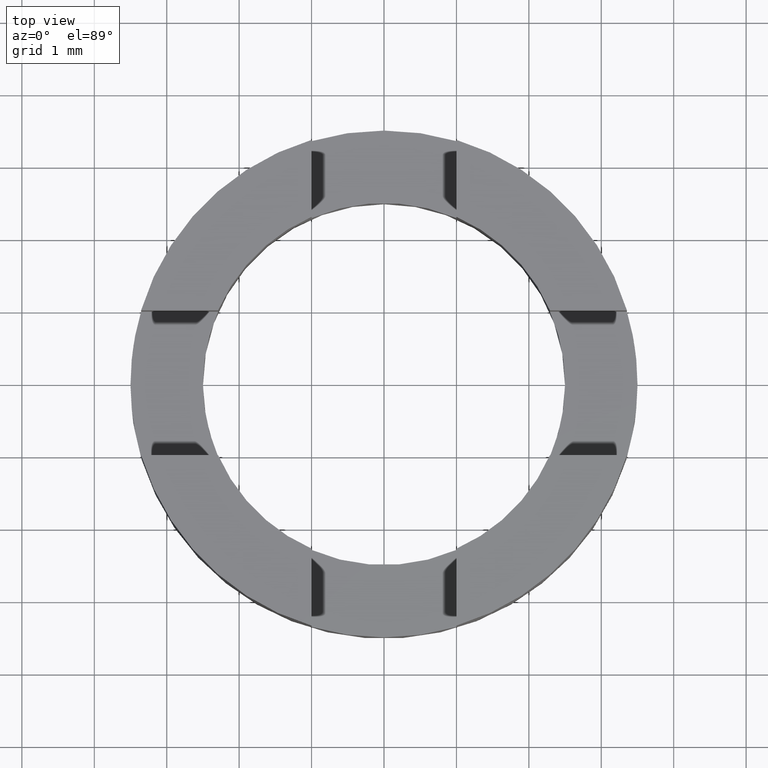
[diagram: clean part render]
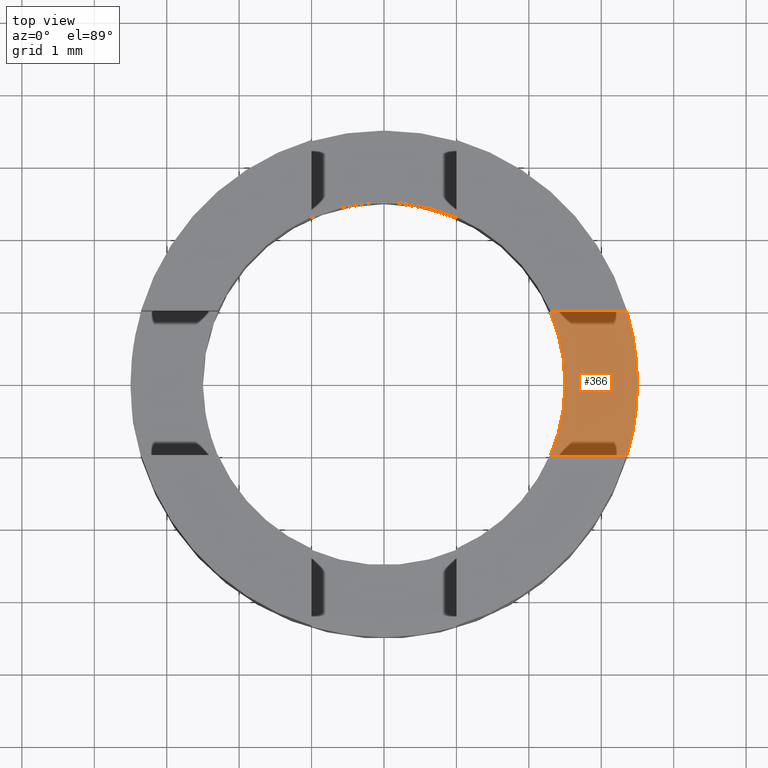
[diagram: same view with one face highlighted and labeled with its STEP entity id]
A machine part, top view. The second image highlights one B-rep face of the part: STEP entity #366.
In plain terms, the highlighted planar face has unit normal (0, 0, -1).
Its self-contained STEP definition (entity closure, byte-faithful):
#9 = ORIENTED_EDGE ( 'NONE', *, *, #239, .T. ) ;
#11 = AXIS2_PLACEMENT_3D ( 'NONE', #745, #570, #275 ) ;
#13 = DIRECTION ( 'NONE',  ( 0.000000000000000000, 0.000000000000000000, -1.000000000000000000 ) ) ;
#21 = DIRECTION ( 'NONE',  ( -1.000000000000000000, -1.279323200775836975E-16, -0.000000000000000000 ) ) ;
#29 = EDGE_CURVE ( 'NONE', #696, #438, #639, .T. ) ;
#34 = LINE ( 'NONE', #143, #441 ) ;
#40 = VERTEX_POINT ( 'NONE', #59 ) ;
#49 = CIRCLE ( 'NONE', #678, 2.500000000000000000 ) ;
#59 = CARTESIAN_POINT ( 'NONE',  ( 3.354101966249671385, 1.000000000000045297, 1.000000000000000000 ) ) ;
#65 = CARTESIAN_POINT ( 'NONE',  ( 0.000000000000000000, 0.000000000000000000, 1.000000000000000000 ) ) ;
#128 = CIRCLE ( 'NONE', #260, 3.500000000000000000 ) ;
#143 = CARTESIAN_POINT ( 'NONE',  ( 1.805037895306199625, 1.000000000000045075, 1.000000000000000000 ) ) ;
#154 = ORIENTED_EDGE ( 'NONE', *, *, #521, .T. ) ;
#156 = ORIENTED_EDGE ( 'NONE', *, *, #29, .F. ) ;
#158 = PLANE ( 'NONE',  #11 ) ;
#174 = DIRECTION ( 'NONE',  ( -1.000000000000000000, 0.000000000000000000, 0.000000000000000000 ) ) ;
#176 = EDGE_CURVE ( 'NONE', #574, #325, #248, .T. ) ;
#185 = VERTEX_POINT ( 'NONE', #257 ) ;
#211 = CARTESIAN_POINT ( 'NONE',  ( 2.500000000000000000, 3.061616997868383141E-16, 1.000000000000000000 ) ) ;
#227 = ORIENTED_EDGE ( 'NONE', *, *, #664, .F. ) ;
#229 = CARTESIAN_POINT ( 'NONE',  ( 0.000000000000000000, 0.000000000000000000, 1.000000000000000000 ) ) ;
#239 = EDGE_CURVE ( 'NONE', #325, #185, #49, .T. ) ;
#245 = CARTESIAN_POINT ( 'NONE',  ( 1.805037895306200069, -0.9999999999999549249, 1.000000000000000000 ) ) ;
#248 = CIRCLE ( 'NONE', #668, 2.500000000000000000 ) ;
#257 = CARTESIAN_POINT ( 'NONE',  ( 2.291287847477939899, -0.9999999999999549249, 1.000000000000000000 ) ) ;
#260 = AXIS2_PLACEMENT_3D ( 'NONE', #662, #477, #727 ) ;
#273 = ORIENTED_EDGE ( 'NONE', *, *, #311, .T. ) ;
#275 = DIRECTION ( 'NONE',  ( -1.000000000000000000, 0.000000000000000000, -0.000000000000000000 ) ) ;
#311 = EDGE_CURVE ( 'NONE', #40, #574, #34, .T. ) ;
#325 = VERTEX_POINT ( 'NONE', #211 ) ;
#356 = LINE ( 'NONE', #245, #616 ) ;
#366 = ADVANCED_FACE ( 'NONE', ( #503 ), #158, .F. ) ;
#386 = EDGE_LOOP ( 'NONE', ( #273, #617, #9, #154, #156, #227 ) ) ;
#424 = DIRECTION ( 'NONE',  ( 1.000000000000000000, 1.279323200775837468E-16, 0.000000000000000000 ) ) ;
#438 = VERTEX_POINT ( 'NONE', #642 ) ;
#439 = CARTESIAN_POINT ( 'NONE',  ( 0.000000000000000000, 0.000000000000000000, 1.000000000000000000 ) ) ;
#441 = VECTOR ( 'NONE', #21, 1000.000000000000000 ) ;
#477 = DIRECTION ( 'NONE',  ( 0.000000000000000000, 0.000000000000000000, -1.000000000000000000 ) ) ;
#503 = FACE_OUTER_BOUND ( 'NONE', #386, .T. ) ;
#521 = EDGE_CURVE ( 'NONE', #185, #438, #356, .T. ) ;
#534 = CARTESIAN_POINT ( 'NONE',  ( 3.500000000000000000, 4.286263797015736595E-16, 1.000000000000000000 ) ) ;
#546 = DIRECTION ( 'NONE',  ( 0.000000000000000000, 0.000000000000000000, -1.000000000000000000 ) ) ;
#558 = DIRECTION ( 'NONE',  ( -1.000000000000000000, 0.000000000000000000, 0.000000000000000000 ) ) ;
#565 = AXIS2_PLACEMENT_3D ( 'NONE', #229, #604, #174 ) ;
#570 = DIRECTION ( 'NONE',  ( 0.000000000000000000, 0.000000000000000000, -1.000000000000000000 ) ) ;
#574 = VERTEX_POINT ( 'NONE', #592 ) ;
#592 = CARTESIAN_POINT ( 'NONE',  ( 2.291287847477900819, 1.000000000000045075, 1.000000000000000000 ) ) ;
#604 = DIRECTION ( 'NONE',  ( 0.000000000000000000, 0.000000000000000000, -1.000000000000000000 ) ) ;
#616 = VECTOR ( 'NONE', #424, 1000.000000000000000 ) ;
#617 = ORIENTED_EDGE ( 'NONE', *, *, #176, .T. ) ;
#639 = CIRCLE ( 'NONE', #565, 3.500000000000000000 ) ;
#642 = CARTESIAN_POINT ( 'NONE',  ( 3.354101966249698030, -0.9999999999999547029, 1.000000000000000000 ) ) ;
#662 = CARTESIAN_POINT ( 'NONE',  ( 0.000000000000000000, 0.000000000000000000, 1.000000000000000000 ) ) ;
#664 = EDGE_CURVE ( 'NONE', #40, #696, #128, .T. ) ;
#668 = AXIS2_PLACEMENT_3D ( 'NONE', #439, #13, #558 ) ;
#678 = AXIS2_PLACEMENT_3D ( 'NONE', #65, #546, #729 ) ;
#696 = VERTEX_POINT ( 'NONE', #534 ) ;
#727 = DIRECTION ( 'NONE',  ( -1.000000000000000000, 0.000000000000000000, 0.000000000000000000 ) ) ;
#729 = DIRECTION ( 'NONE',  ( -1.000000000000000000, 0.000000000000000000, 0.000000000000000000 ) ) ;
#745 = CARTESIAN_POINT ( 'NONE',  ( 0.000000000000000000, 0.000000000000000000, 1.000000000000000000 ) ) ;